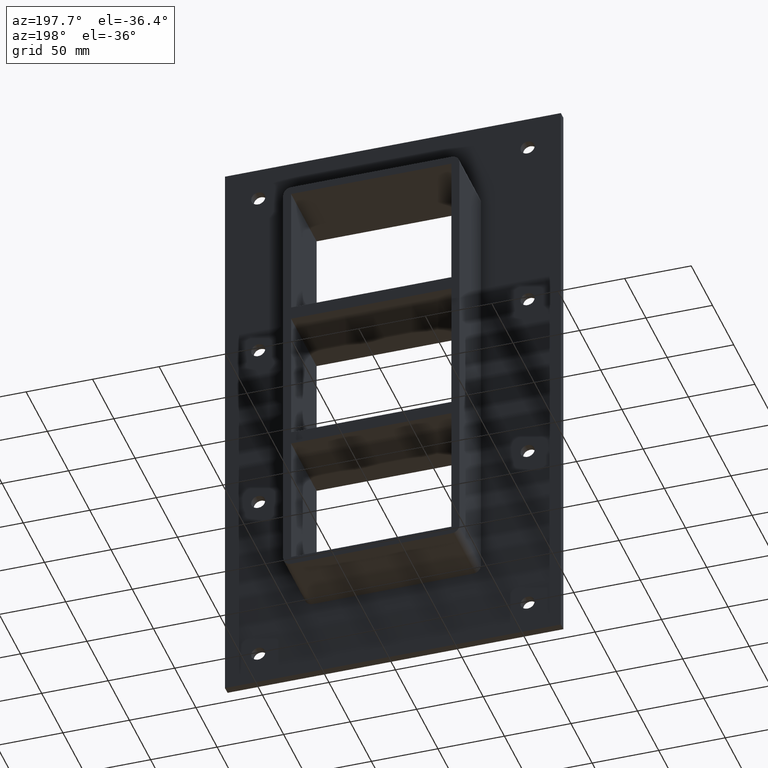
[diagram: clean part render]
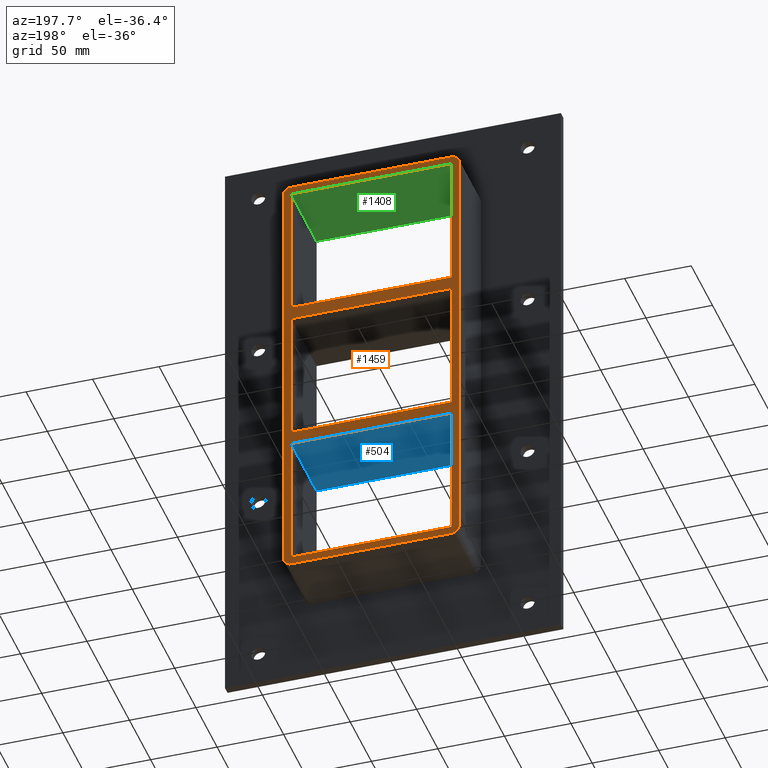
[diagram: same view with three faces highlighted in distinct colors, each labeled with its STEP entity id]
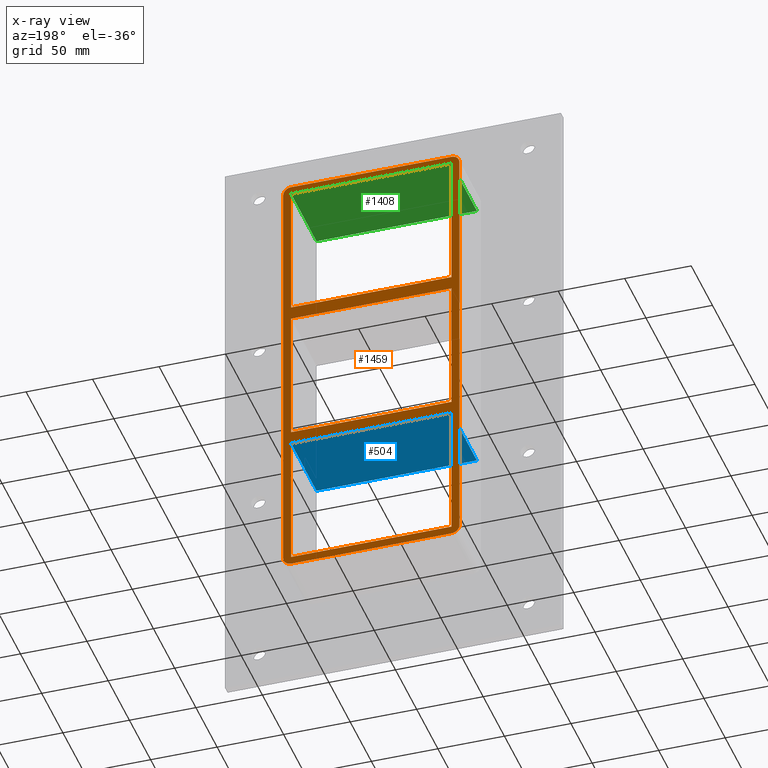
[diagram: x-ray of the same camera — body ghosted, the three highlighted faces saturated]
A machine part, auxiliary view with three faces highlighted in distinct colors.
The next image is the same camera in x-ray (body ghosted, the three faces saturated) — at least one of them is partly hidden behind the body in this view.
Their STEP definitions:

[orange] entity #1459 — the highlighted planar face has unit normal (0, 1, 0).
#307=CARTESIAN_POINT('',(-60.249999999997058,57.0,50.4999999999891));
#308=VERTEX_POINT('',#307);
#315=CARTESIAN_POINT('',(60.249999999996362,57.0,50.499999999989214));
#316=VERTEX_POINT('',#315);
#317=CARTESIAN_POINT('',(60.249999999996362,57.0,50.499999999989214));
#318=DIRECTION('',(-1.0,0.0,0.0));
#319=VECTOR('',#318,120.49999999999342);
#320=LINE('',#317,#319);
#321=EDGE_CURVE('',#316,#308,#320,.T.);
#347=CARTESIAN_POINT('',(60.249999999999027,57.0,60.500000000000469));
#348=VERTEX_POINT('',#347);
#355=CARTESIAN_POINT('',(-60.249999999997058,57.0,60.500000000000469));
#356=VERTEX_POINT('',#355);
#357=CARTESIAN_POINT('',(-60.249999999997058,57.0,60.500000000000469));
#358=DIRECTION('',(1.0,0.0,0.0));
#359=VECTOR('',#358,120.49999999999608);
#360=LINE('',#357,#359);
#361=EDGE_CURVE('',#356,#348,#360,.T.);
#378=CARTESIAN_POINT('',(-60.249999999999986,57.0,161.5));
#379=VERTEX_POINT('',#378);
#380=CARTESIAN_POINT('',(-60.249999999999986,57.0,161.49999999999997));
#381=DIRECTION('',(0.0,0.0,-1.0));
#382=VECTOR('',#381,100.99999999999952);
#383=LINE('',#380,#382);
#384=EDGE_CURVE('',#379,#356,#383,.T.);
#409=CARTESIAN_POINT('',(60.249999999999027,57.0,-50.499999999999545));
#410=VERTEX_POINT('',#409);
#411=CARTESIAN_POINT('',(60.249999999999986,57.0,-50.499999999999545));
#412=DIRECTION('',(0.0,0.0,1.0));
#413=VECTOR('',#412,100.99999999998877);
#414=LINE('',#411,#413);
#415=EDGE_CURVE('',#410,#316,#414,.T.);
#448=CARTESIAN_POINT('',(60.249999999999986,57.0,161.5));
#449=VERTEX_POINT('',#448);
#456=CARTESIAN_POINT('',(60.249999999999986,57.0,60.500000000000476));
#457=DIRECTION('',(0.0,0.0,1.0));
#458=VECTOR('',#457,100.99999999999952);
#459=LINE('',#456,#458);
#460=EDGE_CURVE('',#348,#449,#459,.T.);
#480=CARTESIAN_POINT('',(-60.249999999997058,57.0,-60.500000000010914));
#481=VERTEX_POINT('',#480);
#488=CARTESIAN_POINT('',(60.249999999996362,57.0,-60.5000000000108));
#489=VERTEX_POINT('',#488);
#490=CARTESIAN_POINT('',(60.249999999996362,57.0,-60.5000000000108));
#491=DIRECTION('',(-1.0,0.0,0.0));
#492=VECTOR('',#491,120.49999999999342);
#493=LINE('',#490,#492);
#494=EDGE_CURVE('',#489,#481,#493,.T.);
#519=CARTESIAN_POINT('',(-60.249999999997058,57.0,-50.499999999999545));
#520=VERTEX_POINT('',#519);
#521=CARTESIAN_POINT('',(-60.249999999997058,57.0,-50.499999999999545));
#522=DIRECTION('',(1.0,0.0,0.0));
#523=VECTOR('',#522,120.49999999999608);
#524=LINE('',#521,#523);
#525=EDGE_CURVE('',#520,#410,#524,.T.);
#549=CARTESIAN_POINT('',(-60.249999999999986,57.0,50.499999999989086));
#550=DIRECTION('',(0.0,0.0,-1.0));
#551=VECTOR('',#550,100.99999999998863);
#552=LINE('',#549,#551);
#553=EDGE_CURVE('',#308,#520,#552,.T.);
#564=CARTESIAN_POINT('',(60.249999999999986,57.0,-161.5));
#565=VERTEX_POINT('',#564);
#566=CARTESIAN_POINT('',(60.249999999999986,57.0,-161.49999999999997));
#567=DIRECTION('',(0.0,0.0,1.0));
#568=VECTOR('',#567,100.99999999998917);
#569=LINE('',#566,#568);
#570=EDGE_CURVE('',#565,#489,#569,.T.);
#939=CARTESIAN_POINT('',(-60.249999999999986,57.0,-161.5));
#940=VERTEX_POINT('',#939);
#947=CARTESIAN_POINT('',(-60.249999999999986,57.0,-60.500000000010921));
#948=DIRECTION('',(0.0,0.0,-1.0));
#949=VECTOR('',#948,100.99999999998909);
#950=LINE('',#947,#949);
#951=EDGE_CURVE('',#481,#940,#950,.T.);
#994=CARTESIAN_POINT('',(60.25,57.0,-167.5));
#995=VERTEX_POINT('',#994);
#1002=CARTESIAN_POINT('',(66.25,57.0,-161.5));
#1003=VERTEX_POINT('',#1002);
#1004=CARTESIAN_POINT('',(60.25,57.0,-161.5));
#1005=DIRECTION('',(0.0,-1.0,0.0));
#1006=DIRECTION('',(0.707106781186546,0.0,-0.707106781186549));
#1007=AXIS2_PLACEMENT_3D('',#1004,#1005,#1006);
#1008=CIRCLE('',#1007,6.000000000000001);
#1009=EDGE_CURVE('',#995,#1003,#1008,.T.);
#1050=CARTESIAN_POINT('',(-60.25,57.0,-167.5));
#1051=VERTEX_POINT('',#1050);
#1058=CARTESIAN_POINT('',(60.25,57.0,-167.5));
#1059=DIRECTION('',(-1.0,0.0,0.0));
#1060=VECTOR('',#1059,120.5);
#1061=LINE('',#1058,#1060);
#1062=EDGE_CURVE('',#995,#1051,#1061,.T.);
#1123=CARTESIAN_POINT('',(-66.25,57.0,-161.5));
#1124=VERTEX_POINT('',#1123);
#1131=CARTESIAN_POINT('',(-60.25,57.0,-161.5));
#1132=DIRECTION('',(0.0,-1.0,0.0));
#1133=DIRECTION('',(-0.707106781186546,0.0,-0.707106781186549));
#1134=AXIS2_PLACEMENT_3D('',#1131,#1132,#1133);
#1135=CIRCLE('',#1134,6.000000000000001);
#1136=EDGE_CURVE('',#1124,#1051,#1135,.T.);
#1197=CARTESIAN_POINT('',(-66.25,57.0,161.5));
#1198=VERTEX_POINT('',#1197);
#1205=CARTESIAN_POINT('',(-66.25,57.0,-161.5));
#1206=DIRECTION('',(0.0,0.0,1.0));
#1207=VECTOR('',#1206,323.0);
#1208=LINE('',#1205,#1207);
#1209=EDGE_CURVE('',#1124,#1198,#1208,.T.);
#1307=CARTESIAN_POINT('',(-60.25,57.0,167.5));
#1308=VERTEX_POINT('',#1307);
#1315=CARTESIAN_POINT('',(-60.25,57.0,161.5));
#1316=DIRECTION('',(0.0,-1.0,0.0));
#1317=DIRECTION('',(-0.707106781186546,0.0,0.707106781186549));
#1318=AXIS2_PLACEMENT_3D('',#1315,#1316,#1317);
#1319=CIRCLE('',#1318,6.000000000000001);
#1320=EDGE_CURVE('',#1308,#1198,#1319,.T.);
#1332=CARTESIAN_POINT('',(60.25,57.0,167.5));
#1333=VERTEX_POINT('',#1332);
#1340=CARTESIAN_POINT('',(-60.25,57.0,167.5));
#1341=DIRECTION('',(1.0,0.0,0.0));
#1342=VECTOR('',#1341,120.5);
#1343=LINE('',#1340,#1342);
#1344=EDGE_CURVE('',#1308,#1333,#1343,.T.);
#1356=CARTESIAN_POINT('',(66.25,57.0,161.5));
#1357=VERTEX_POINT('',#1356);
#1364=CARTESIAN_POINT('',(60.25,57.0,161.5));
#1365=DIRECTION('',(0.0,-1.0,0.0));
#1366=DIRECTION('',(0.707106781186546,0.0,0.707106781186549));
#1367=AXIS2_PLACEMENT_3D('',#1364,#1365,#1366);
#1368=CIRCLE('',#1367,6.000000000000001);
#1369=EDGE_CURVE('',#1357,#1333,#1368,.T.);
#1382=CARTESIAN_POINT('',(66.25,57.0,161.5));
#1383=DIRECTION('',(0.0,0.0,-1.0));
#1384=VECTOR('',#1383,323.0);
#1385=LINE('',#1382,#1384);
#1386=EDGE_CURVE('',#1357,#1003,#1385,.T.);
#1398=CARTESIAN_POINT('',(60.249999999999979,57.0,161.5));
#1399=DIRECTION('',(-1.0,0.0,0.0));
#1400=VECTOR('',#1399,120.49999999999997);
#1401=LINE('',#1398,#1400);
#1402=EDGE_CURVE('',#449,#379,#1401,.T.);
#1417=CARTESIAN_POINT('',(-60.249999999999979,57.0,-161.5));
#1418=DIRECTION('',(1.0,0.0,0.0));
#1419=VECTOR('',#1418,120.49999999999997);
#1420=LINE('',#1417,#1419);
#1421=EDGE_CURVE('',#940,#565,#1420,.T.);
#1426=CARTESIAN_POINT('',(0.0,57.0,0.0));
#1427=DIRECTION('',(0.0,1.0,0.0));
#1428=DIRECTION('',(0.0,0.0,1.0));
#1429=AXIS2_PLACEMENT_3D('',#1426,#1427,#1428);
#1430=PLANE('',#1429);
#1431=ORIENTED_EDGE('',*,*,#1136,.F.);
#1432=ORIENTED_EDGE('',*,*,#1209,.T.);
#1433=ORIENTED_EDGE('',*,*,#1320,.F.);
#1434=ORIENTED_EDGE('',*,*,#1344,.T.);
#1435=ORIENTED_EDGE('',*,*,#1369,.F.);
#1436=ORIENTED_EDGE('',*,*,#1386,.T.);
#1437=ORIENTED_EDGE('',*,*,#1009,.F.);
#1438=ORIENTED_EDGE('',*,*,#1062,.T.);
#1439=EDGE_LOOP('',(#1431,#1432,#1433,#1434,#1435,#1436,#1437,#1438));
#1440=FACE_OUTER_BOUND('',#1439,.T.);
#1441=ORIENTED_EDGE('',*,*,#553,.T.);
#1442=ORIENTED_EDGE('',*,*,#525,.T.);
#1443=ORIENTED_EDGE('',*,*,#415,.T.);
#1444=ORIENTED_EDGE('',*,*,#321,.T.);
#1445=EDGE_LOOP('',(#1441,#1442,#1443,#1444));
#1446=FACE_BOUND('',#1445,.T.);
#1447=ORIENTED_EDGE('',*,*,#951,.T.);
#1448=ORIENTED_EDGE('',*,*,#1421,.T.);
#1449=ORIENTED_EDGE('',*,*,#570,.T.);
#1450=ORIENTED_EDGE('',*,*,#494,.T.);
#1451=EDGE_LOOP('',(#1447,#1448,#1449,#1450));
#1452=FACE_BOUND('',#1451,.T.);
#1453=ORIENTED_EDGE('',*,*,#361,.T.);
#1454=ORIENTED_EDGE('',*,*,#460,.T.);
#1455=ORIENTED_EDGE('',*,*,#1402,.T.);
#1456=ORIENTED_EDGE('',*,*,#384,.T.);
#1457=EDGE_LOOP('',(#1453,#1454,#1455,#1456));
#1458=FACE_BOUND('',#1457,.T.);
#1459=ADVANCED_FACE('',(#1440,#1446,#1452,#1458),#1430,.T.);

[blue] entity #504 — the highlighted planar face has unit normal (0, 0, -1).
#465=CARTESIAN_POINT('',(60.249999999996362,-3.0,-60.5000000000108));
#466=DIRECTION('',(0.0,0.0,-1.0));
#467=DIRECTION('',(-1.0,0.0,0.0));
#468=AXIS2_PLACEMENT_3D('',#465,#466,#467);
#469=PLANE('',#468);
#470=CARTESIAN_POINT('',(60.249999999996362,-3.0,-60.5000000000108));
#471=VERTEX_POINT('',#470);
#472=CARTESIAN_POINT('',(-60.249999999997058,-3.0,-60.500000000010914));
#473=VERTEX_POINT('',#472);
#474=CARTESIAN_POINT('',(60.249999999996362,-3.0,-60.5000000000108));
#475=DIRECTION('',(-1.0,0.0,0.0));
#476=VECTOR('',#475,120.49999999999342);
#477=LINE('',#474,#476);
#478=EDGE_CURVE('',#471,#473,#477,.T.);
#479=ORIENTED_EDGE('',*,*,#478,.T.);
#480=CARTESIAN_POINT('',(-60.249999999997058,57.0,-60.500000000010914));
#481=VERTEX_POINT('',#480);
#482=CARTESIAN_POINT('',(-60.249999999999986,57.000000000000007,-60.500000000010928));
#483=DIRECTION('',(0.0,-1.0,0.0));
#484=VECTOR('',#483,60.000000000000007);
#485=LINE('',#482,#484);
#486=EDGE_CURVE('',#481,#473,#485,.T.);
#487=ORIENTED_EDGE('',*,*,#486,.F.);
#488=CARTESIAN_POINT('',(60.249999999996362,57.0,-60.5000000000108));
#489=VERTEX_POINT('',#488);
#490=CARTESIAN_POINT('',(60.249999999996362,57.0,-60.5000000000108));
#491=DIRECTION('',(-1.0,0.0,0.0));
#492=VECTOR('',#491,120.49999999999342);
#493=LINE('',#490,#492);
#494=EDGE_CURVE('',#489,#481,#493,.T.);
#495=ORIENTED_EDGE('',*,*,#494,.F.);
#496=CARTESIAN_POINT('',(60.249999999999986,-3.0,-60.500000000010807));
#497=DIRECTION('',(0.0,1.0,0.0));
#498=VECTOR('',#497,60.000000000000007);
#499=LINE('',#496,#498);
#500=EDGE_CURVE('',#471,#489,#499,.T.);
#501=ORIENTED_EDGE('',*,*,#500,.F.);
#502=EDGE_LOOP('',(#479,#487,#495,#501));
#503=FACE_OUTER_BOUND('',#502,.T.);
#504=ADVANCED_FACE('',(#503),#469,.T.);

[green] entity #1408 — the highlighted planar face has unit normal (0, 0, 1).
#378=CARTESIAN_POINT('',(-60.249999999999986,57.0,161.5));
#379=VERTEX_POINT('',#378);
#386=CARTESIAN_POINT('',(-60.249999999999986,-3.0,161.5));
#387=VERTEX_POINT('',#386);
#388=CARTESIAN_POINT('',(-60.249999999999986,-3.0,161.5));
#389=DIRECTION('',(0.0,1.0,0.0));
#390=VECTOR('',#389,60.0);
#391=LINE('',#388,#390);
#392=EDGE_CURVE('',#387,#379,#391,.T.);
#440=CARTESIAN_POINT('',(60.249999999999986,-3.0,161.5));
#441=VERTEX_POINT('',#440);
#448=CARTESIAN_POINT('',(60.249999999999986,57.0,161.5));
#449=VERTEX_POINT('',#448);
#450=CARTESIAN_POINT('',(60.249999999999986,-3.0,161.5));
#451=DIRECTION('',(0.0,1.0,0.0));
#452=VECTOR('',#451,60.0);
#453=LINE('',#450,#452);
#454=EDGE_CURVE('',#441,#449,#453,.T.);
#1273=CARTESIAN_POINT('',(-60.249999999999986,-3.0,161.5));
#1274=DIRECTION('',(1.0,0.0,0.0));
#1275=VECTOR('',#1274,120.49999999999997);
#1276=LINE('',#1273,#1275);
#1277=EDGE_CURVE('',#387,#441,#1276,.T.);
#1392=CARTESIAN_POINT('',(-60.249999999999986,0.0,161.5));
#1393=DIRECTION('',(0.0,0.0,1.0));
#1394=DIRECTION('',(1.0,0.0,0.0));
#1395=AXIS2_PLACEMENT_3D('',#1392,#1393,#1394);
#1396=PLANE('',#1395);
#1397=ORIENTED_EDGE('',*,*,#392,.T.);
#1398=CARTESIAN_POINT('',(60.249999999999979,57.0,161.5));
#1399=DIRECTION('',(-1.0,0.0,0.0));
#1400=VECTOR('',#1399,120.49999999999997);
#1401=LINE('',#1398,#1400);
#1402=EDGE_CURVE('',#449,#379,#1401,.T.);
#1403=ORIENTED_EDGE('',*,*,#1402,.F.);
#1404=ORIENTED_EDGE('',*,*,#454,.F.);
#1405=ORIENTED_EDGE('',*,*,#1277,.F.);
#1406=EDGE_LOOP('',(#1397,#1403,#1404,#1405));
#1407=FACE_OUTER_BOUND('',#1406,.T.);
#1408=ADVANCED_FACE('',(#1407),#1396,.F.);